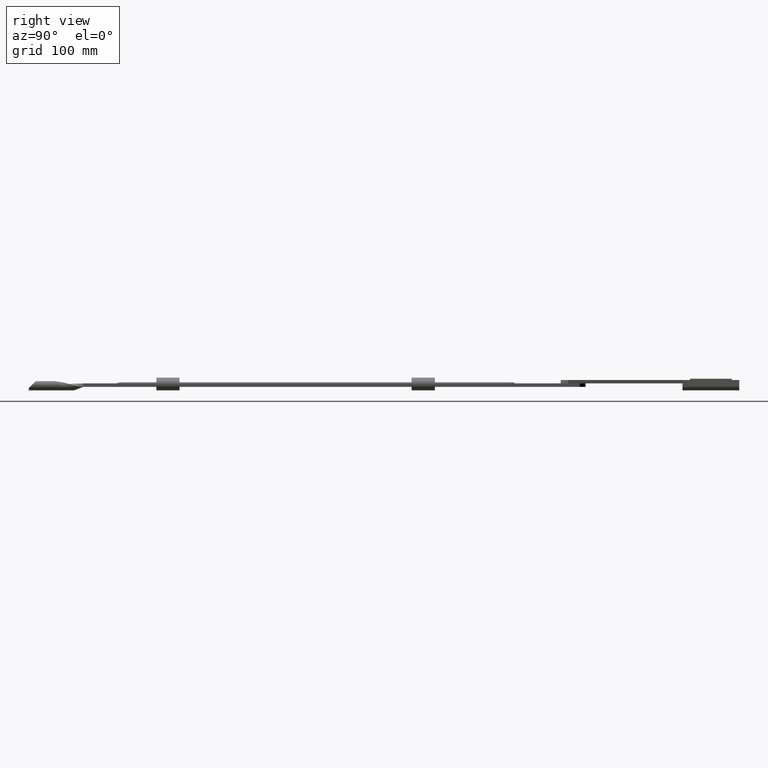
[diagram: clean part render]
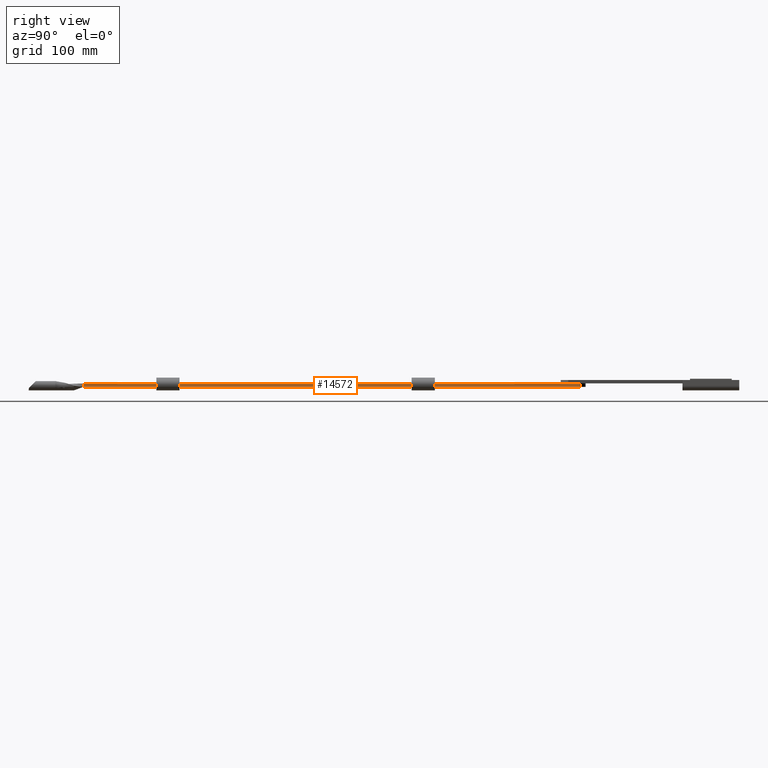
[diagram: same view with one face highlighted and labeled with its STEP entity id]
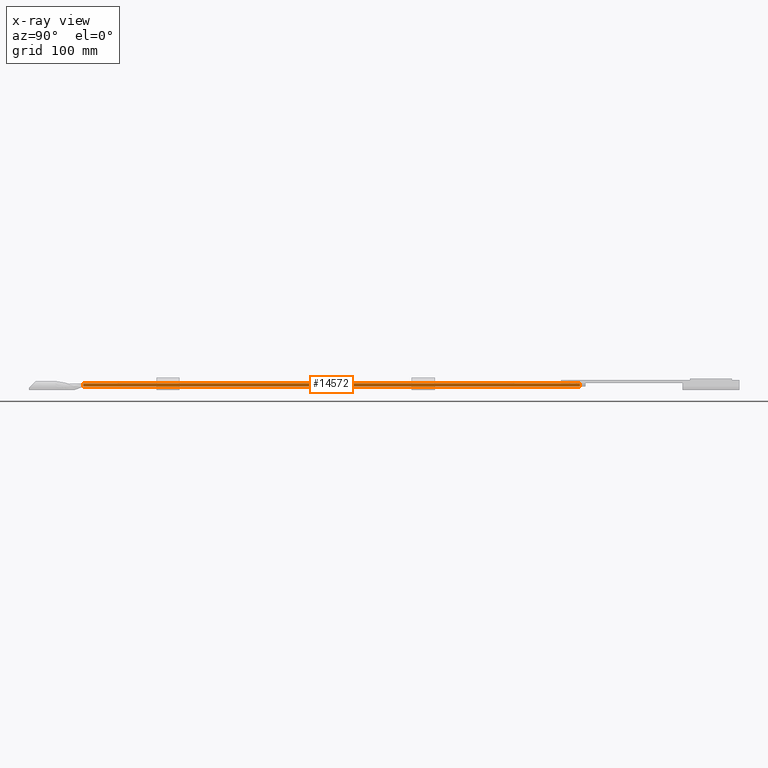
[diagram: x-ray of the same camera — body ghosted, the highlighted face saturated]
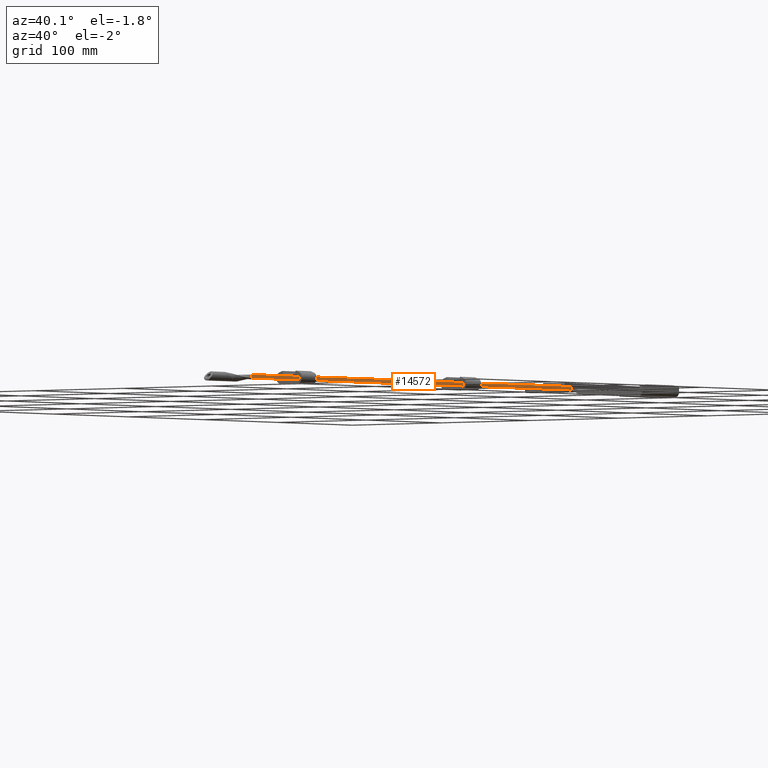
[diagram: same view with one face highlighted and labeled with its STEP entity id]
A machine part, right view. The second image highlights one B-rep face of the part: STEP entity #14572.
The next image is the same camera in x-ray: the body ghosted, the highlighted face saturated — about 0% of this face is hidden behind the body in this view.
A second angle (auxiliary view) of the same face is appended — the face is thin or edge-on in the first view.
In plain terms, the highlighted planar face has unit normal (-1, 0, 0).
Its self-contained STEP definition (entity closure, byte-faithful):
#16 = EDGE_CURVE ( 'NONE', #7216, #2678, #8994, .T. ) ;
#424 = VECTOR ( 'NONE', #8294, 1000.000000000000000 ) ;
#613 = DIRECTION ( 'NONE',  ( -0.000000000000000000, -1.000000000000000000, -0.000000000000000000 ) ) ;
#1662 = LINE ( 'NONE', #8239, #424 ) ;
#2678 = VERTEX_POINT ( 'NONE', #9091 ) ;
#2895 = DIRECTION ( 'NONE',  ( 0.000000000000000000, 0.000000000000000000, 1.000000000000000000 ) ) ;
#3646 = DIRECTION ( 'NONE',  ( -0.000000000000000000, -1.000000000000000000, -0.000000000000000000 ) ) ;
#4157 = VECTOR ( 'NONE', #7254, 1000.000000000000000 ) ;
#4548 = LINE ( 'NONE', #8469, #4157 ) ;
#5162 = ORIENTED_EDGE ( 'NONE', *, *, #5937, .F. ) ;
#5734 = LINE ( 'NONE', #12134, #10257 ) ;
#5883 = ORIENTED_EDGE ( 'NONE', *, *, #15947, .T. ) ;
#5937 = EDGE_CURVE ( 'NONE', #14636, #2678, #4548, .T. ) ;
#6116 = CARTESIAN_POINT ( 'NONE',  ( 11.00000000000000000, 240.0000000000000000, 1.500000000000000444 ) ) ;
#6150 = ORIENTED_EDGE ( 'NONE', *, *, #16, .T. ) ;
#7216 = VERTEX_POINT ( 'NONE', #9869 ) ;
#7254 = DIRECTION ( 'NONE',  ( 0.000000000000000000, 0.000000000000000000, 1.000000000000000000 ) ) ;
#8239 = CARTESIAN_POINT ( 'NONE',  ( 11.00000000000000000, 235.0000000000000000, -4.582752275022608401 ) ) ;
#8294 = DIRECTION ( 'NONE',  ( -0.000000000000000000, -0.000000000000000000, 1.000000000000000000 ) ) ;
#8469 = CARTESIAN_POINT ( 'NONE',  ( 11.00000000000000000, -193.0000000000000000, -1.499999999999999556 ) ) ;
#8792 = VECTOR ( 'NONE', #3646, 1000.000000000000000 ) ;
#8994 = LINE ( 'NONE', #6116, #8792 ) ;
#9091 = CARTESIAN_POINT ( 'NONE',  ( 10.99999999999999289, -193.0000000000000284, 1.500000000000000222 ) ) ;
#9287 = CARTESIAN_POINT ( 'NONE',  ( 11.00000000000000000, 240.0000000000000000, -1.499999999999999556 ) ) ;
#9817 = EDGE_CURVE ( 'NONE', #9991, #14636, #5734, .T. ) ;
#9869 = CARTESIAN_POINT ( 'NONE',  ( 11.00000000000000000, 235.0000000000000000, 1.500000000000000444 ) ) ;
#9991 = VERTEX_POINT ( 'NONE', #11543 ) ;
#10257 = VECTOR ( 'NONE', #613, 1000.000000000000000 ) ;
#10358 = PLANE ( 'NONE',  #10792 ) ;
#10792 = AXIS2_PLACEMENT_3D ( 'NONE', #9287, #15821, #2895 ) ;
#11543 = CARTESIAN_POINT ( 'NONE',  ( 11.00000000000000000, 235.0000000000000000, -1.500000000000000444 ) ) ;
#12134 = CARTESIAN_POINT ( 'NONE',  ( 11.00000000000000000, 240.0000000000000000, -1.499999999999999556 ) ) ;
#13199 = CARTESIAN_POINT ( 'NONE',  ( 11.00000000000000000, -193.0000000000000000, -1.499999999999999556 ) ) ;
#14572 = ADVANCED_FACE ( 'NONE', ( #16864 ), #10358, .F. ) ;
#14636 = VERTEX_POINT ( 'NONE', #13199 ) ;
#15146 = EDGE_LOOP ( 'NONE', ( #15613, #5883, #6150, #5162 ) ) ;
#15613 = ORIENTED_EDGE ( 'NONE', *, *, #9817, .F. ) ;
#15821 = DIRECTION ( 'NONE',  ( -1.000000000000000000, 0.000000000000000000, 0.000000000000000000 ) ) ;
#15947 = EDGE_CURVE ( 'NONE', #9991, #7216, #1662, .T. ) ;
#16864 = FACE_OUTER_BOUND ( 'NONE', #15146, .T. ) ;